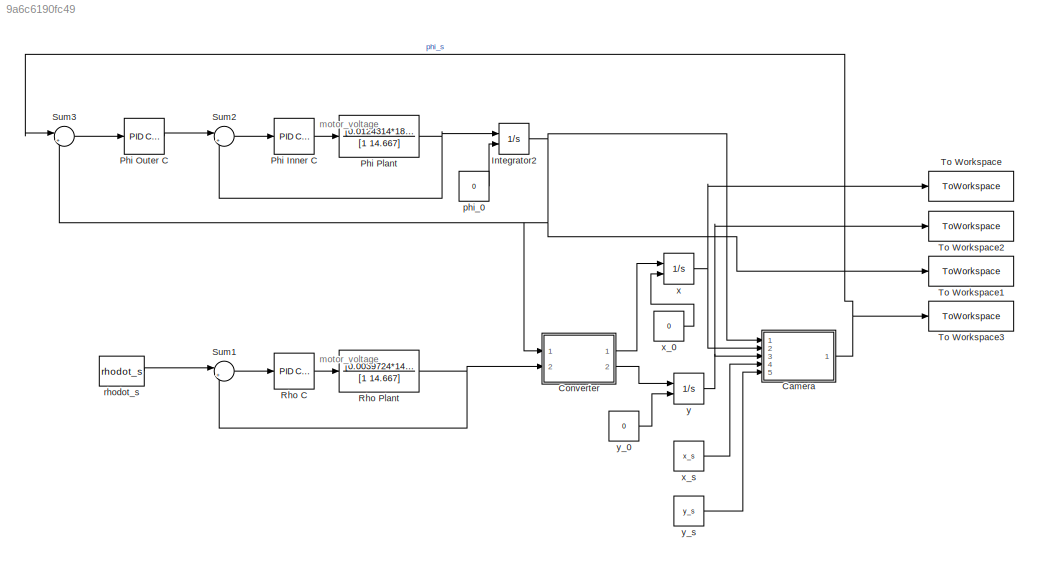
MODEL slx_9a6c6190fc49
KIND model
CONFIG AbsTol = auto
CONFIG EnableMultiTasking = off
CONFIG FixedStep = auto
CONFIG MaxStep = auto
CONFIG MinStep = auto
CONFIG RelTol = 1e-3
CONFIG SampleTimeConstraint = Unconstrained
CONFIG SolverName = VariableStepAuto
CONFIG StartTime = 0.0
CONFIG StopTime = 25.0
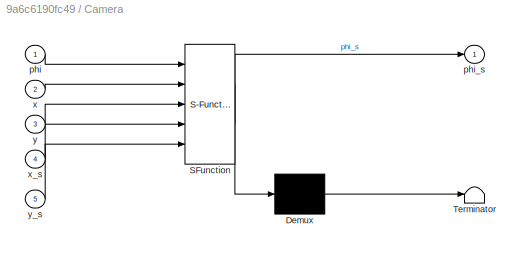
BLOCK [SubSystem] Camera
  ErrorFcn = Stateflow.Translate.translate
  PermitHierarchicalResolution = ExplicitOnly
  Ports = [5, 1]
  RequestExecContextInheritance = off
  SFBlockType = MATLAB Function
  SystemSampleTime = .2
  TreatAsAtomicUnit = on
BLOCK [Demux] Camera/ Demux 
  Outputs = 1
  Ports = [1, 1]
BLOCK [S-Function] Camera/ SFunction 
  EnableBusSupport = on
  FunctionName = sf_sfun
  PortCounts = [5 2]
  Ports = [5, 2]
  SFcnIsStateOwnerBlock = off
  SFunctionDeploymentMode = off
  Tag = Stateflow S-Function 2
BLOCK [Terminator] Camera/ Terminator 
BLOCK [Inport] Camera/phi
BLOCK [Outport] Camera/phi_s
BLOCK [Inport] Camera/x
  Port = 2
BLOCK [Inport] Camera/x_s
  Port = 4
BLOCK [Inport] Camera/y
  Port = 3
BLOCK [Inport] Camera/y_s
  Port = 5
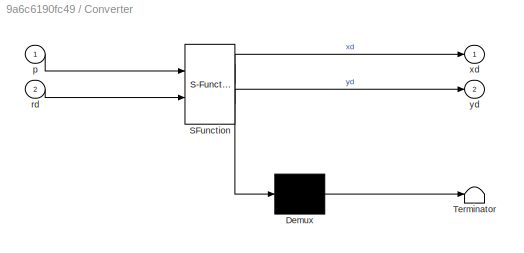
BLOCK [SubSystem] Converter
  ErrorFcn = Stateflow.Translate.translate
  PermitHierarchicalResolution = ExplicitOnly
  Ports = [2, 2]
  RequestExecContextInheritance = off
  SFBlockType = MATLAB Function
  TreatAsAtomicUnit = on
BLOCK [Demux] Converter/ Demux 
  Outputs = 1
  Ports = [1, 1]
BLOCK [S-Function] Converter/ SFunction 
  EnableBusSupport = on
  FunctionName = sf_sfun
  PortCounts = [2 3]
  Ports = [2, 3]
  SFcnIsStateOwnerBlock = off
  SFunctionDeploymentMode = off
  Tag = Stateflow S-Function 1
BLOCK [Terminator] Converter/ Terminator 
BLOCK [Inport] Converter/p
BLOCK [Inport] Converter/rd
  Port = 2
BLOCK [Outport] Converter/xd
BLOCK [Outport] Converter/yd
  Port = 2
BLOCK [Integrator] Integrator2
  InitialConditionSource = external
  Ports = [2, 1]
BLOCK [Reference] Phi Inner C  REF=slpidlib/PID Controller
  Ports = [1, 1]
  SourceBlock = slpidlib/PID Controller
  SourceProductBaseCode = SL
  SourceType = PID 1dof
BLOCK [Reference] Phi Outer C  REF=slpidlib/PID Controller
  Ports = [1, 1]
  SourceBlock = slpidlib/PID Controller
  SourceProductBaseCode = SL
  SourceType = PID 1dof
BLOCK [TransferFcn] Phi Plant
  Denominator = [1 14.667]
  Numerator = [0.0124314*180/pi*14.667]
BLOCK [Reference] Rho C  REF=slpidlib/PID Controller
  Ports = [1, 1]
  SourceBlock = slpidlib/PID Controller
  SourceProductBaseCode = SL
  SourceType = PID 1dof
BLOCK [TransferFcn] Rho Plant
  Denominator = [1 14.667]
  Numerator = [0.0039724*14.667]
BLOCK [Sum] Sum1
  Inputs = |+-
  Ports = [2, 1]
BLOCK [Sum] Sum2
  Inputs = |+-
  Ports = [2, 1]
BLOCK [Sum] Sum3
  Inputs = |+-
  NameLocation = top
  Ports = [2, 1]
BLOCK [ToWorkspace] To Workspace
  FixptAsFi = on
  MaxDataPoints = inf
  Ports = [1]
  SampleTime = -1
  SaveFormat = Timeseries
  VariableName = X
BLOCK [ToWorkspace] To Workspace1
  FixptAsFi = on
  MaxDataPoints = inf
  Ports = [1]
  SampleTime = -1
  SaveFormat = Timeseries
  VariableName = Phi
BLOCK [ToWorkspace] To Workspace2
  FixptAsFi = on
  MaxDataPoints = inf
  Ports = [1]
  SampleTime = -1
  SaveFormat = Timeseries
  VariableName = Y
BLOCK [ToWorkspace] To Workspace3
  FixptAsFi = on
  MaxDataPoints = inf
  Ports = [1]
  SampleTime = -1
  SaveFormat = Timeseries
  VariableName = Phi_s
BLOCK [Constant] phi_0
  Value = 0
BLOCK [Constant] rhodot_s
  Value = rhodot_s
BLOCK [Integrator] x
  InitialConditionSource = external
  Ports = [2, 1]
BLOCK [Constant] x_0
  Value = 0
BLOCK [Constant] x_s
  Value = x_s
BLOCK [Integrator] y
  InitialConditionSource = external
  Ports = [2, 1]
BLOCK [Constant] y_0
  Value = 0
BLOCK [Constant] y_s
  Value = y_s
ANNOTATION (root): motor_voltage
NET Camera:1 -> Sum3:1, To Workspace3:1
LINE Converter:1 -> x:1
LINE Converter:2 -> y:1
NET Integrator2:1 -> Camera:1, Converter:1, Sum3:2, To Workspace1:1
LINE Phi Inner C:1 -> Phi Plant:1
LINE Phi Outer C:1 -> Sum2:1
NET Phi Plant:1 -> Integrator2:1, Sum2:2
LINE Rho C:1 -> Rho Plant:1
NET Rho Plant:1 -> Converter:2, Sum1:2
LINE Sum1:1 -> Rho C:1
LINE Sum2:1 -> Phi Inner C:1
LINE Sum3:1 -> Phi Outer C:1
LINE phi_0:1 -> Integrator2:2
LINE rhodot_s:1 -> Sum1:1
NET x:1 -> Camera:2, To Workspace:1
LINE x_0:1 -> x:2
LINE x_s:1 -> Camera:4
NET y:1 -> Camera:3, To Workspace2:1
LINE y_0:1 -> y:2
LINE y_s:1 -> Camera:5
note: NET lines group one-source signal fan-out (src -> all destinations, sorted); 1:1 wires keep LINE
CHART Converter states=1 transitions=1
  STATE_LABEL 'eML_blk_kernel()'
  STATE_LABEL 'SCRIPT:\nfunction [xd,yd] = fcn(p,rd)\n\nxd = rd.*cos(p*pi/180);\nyd = rd.*sin(p*pi/180);\n'
CHART Camera states=1 transitions=1
  STATE_LABEL 'eML_blk_kernel()'
  STATE_LABEL 'SCRIPT:\nfunction phi_s = fcn(phi,x,y,x_s,y_s)\n%#codegen\n%\n% Simulation of Camera with line detection\n% phi - angle of robot in degrees\n% x - x position of robot in feet\n% y - y position of robot in feet\n% x_s - vector of x coordinates for line to be detected (in feet)\n% y_s - vector of y coordinates for line to be detected (in feet)\n%\n%\n\n% change show_image to 1 to see camera image during simulati...<+2767ch>'
CHART  states=0 transitions=0
CHART  states=0 transitions=0
